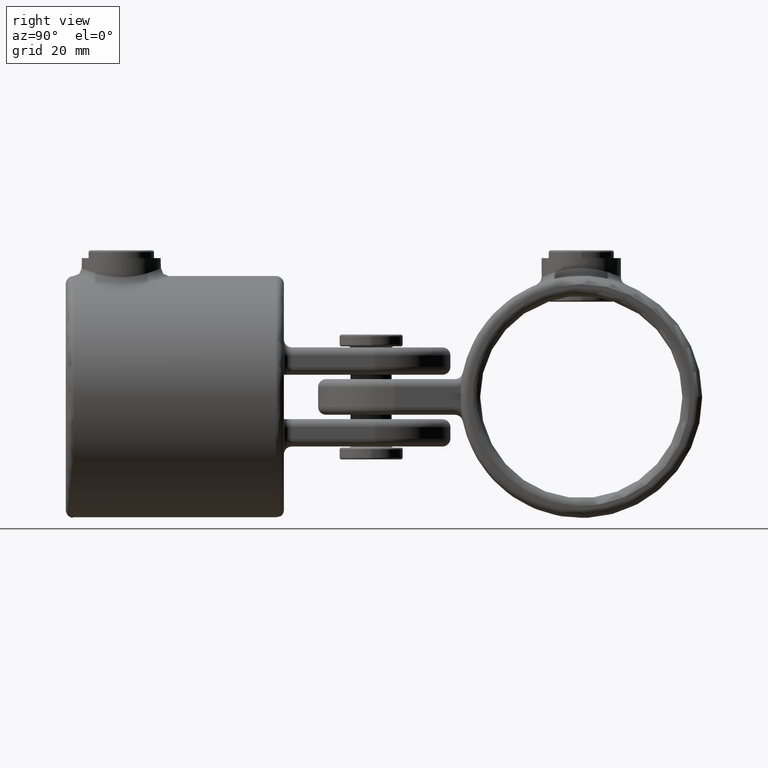
[diagram: clean part render]
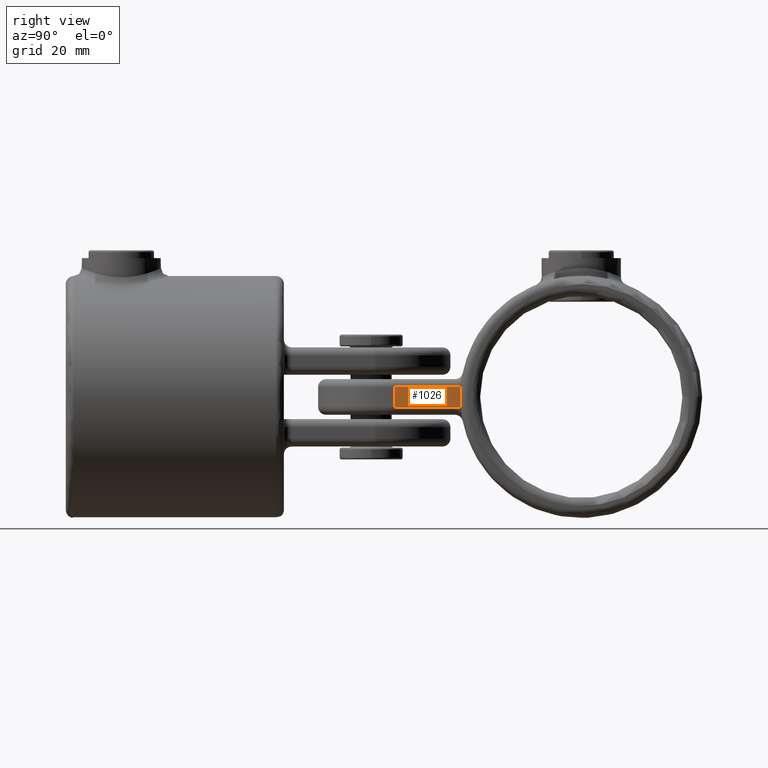
[diagram: same view with one face highlighted and labeled with its STEP entity id]
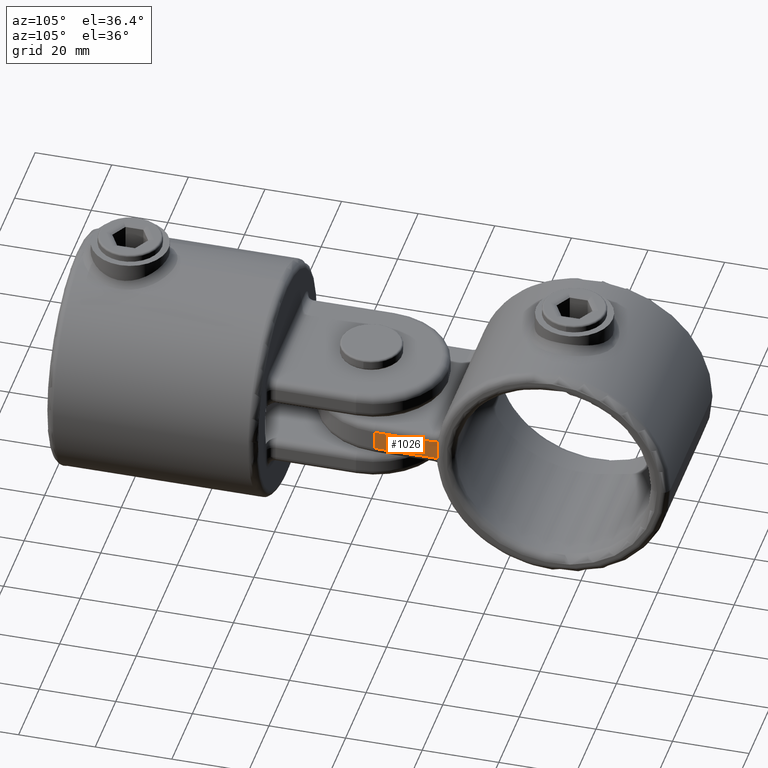
[diagram: same view with one face highlighted and labeled with its STEP entity id]
A machine part, right view. The second image highlights one B-rep face of the part: STEP entity #1026.
A second angle (auxiliary view) of the same face is appended — the face is thin or edge-on in the first view.
In plain terms, the highlighted planar face has unit normal (-1, -0, 0).
Its self-contained STEP definition (entity closure, byte-faithful):
#25 = AXIS2_PLACEMENT_3D ( 'NONE', #2506, #1278, #2079 ) ;
#66 = CARTESIAN_POINT ( 'NONE',  ( 4.500000000000000000, 19.50000000000001066, -28.49999999999999645 ) ) ;
#152 = CARTESIAN_POINT ( 'NONE',  ( 2.499999999999999556, 19.50000000000001066, -46.99999999999999289 ) ) ;
#436 = VERTEX_POINT ( 'NONE', #3570 ) ;
#774 = EDGE_CURVE ( 'NONE', #2438, #2694, #819, .T. ) ;
#800 = AXIS2_PLACEMENT_3D ( 'NONE', #4526, #881, #4507 ) ;
#819 = LINE ( 'NONE', #1044, #3897 ) ;
#831 = ORIENTED_EDGE ( 'NONE', *, *, #774, .T. ) ;
#881 = DIRECTION ( 'NONE',  ( 0.000000000000000000, -1.000000000000000000, 0.000000000000000000 ) ) ;
#898 = DIRECTION ( 'NONE',  ( 0.000000000000000000, 0.000000000000000000, -1.000000000000000000 ) ) ;
#906 = CIRCLE ( 'NONE', #25, 4.000000000000003553 ) ;
#1026 = ADVANCED_FACE ( 'NONE', ( #1509 ), #3241, .F. ) ;
#1044 = CARTESIAN_POINT ( 'NONE',  ( -2.499999999999999556, 19.50000000000001066, -28.49999999999999645 ) ) ;
#1066 = VECTOR ( 'NONE', #3788, 1000.000000000000000 ) ;
#1101 = EDGE_CURVE ( 'NONE', #2200, #1817, #4888, .T. ) ;
#1215 = CARTESIAN_POINT ( 'NONE',  ( -2.780036046625686375, 19.50000000000001066, -30.37303737823172867 ) ) ;
#1278 = DIRECTION ( 'NONE',  ( 0.000000000000000000, -1.000000000000000000, 0.000000000000000000 ) ) ;
#1509 = FACE_OUTER_BOUND ( 'NONE', #2316, .T. ) ;
#1689 = ORIENTED_EDGE ( 'NONE', *, *, #1101, .T. ) ;
#1817 = VERTEX_POINT ( 'NONE', #3385 ) ;
#1879 = ORIENTED_EDGE ( 'NONE', *, *, #2197, .T. ) ;
#2021 = VECTOR ( 'NONE', #4216, 1000.000000000000000 ) ;
#2079 = DIRECTION ( 'NONE',  ( 0.000000000000000000, 0.000000000000000000, -1.000000000000000000 ) ) ;
#2094 = EDGE_CURVE ( 'NONE', #4039, #436, #5068, .T. ) ;
#2197 = EDGE_CURVE ( 'NONE', #436, #2200, #2383, .T. ) ;
#2200 = VERTEX_POINT ( 'NONE', #4124 ) ;
#2268 = CARTESIAN_POINT ( 'NONE',  ( -2.499999999999999556, 19.50000000000001066, -31.84336665618131690 ) ) ;
#2316 = EDGE_LOOP ( 'NONE', ( #831, #5037, #4502, #1879, #1689, #3002 ) ) ;
#2383 = CIRCLE ( 'NONE', #800, 4.000000000000003553 ) ;
#2438 = VERTEX_POINT ( 'NONE', #5027 ) ;
#2506 = CARTESIAN_POINT ( 'NONE',  ( -6.500000000000000000, 19.50000000000001066, -31.84336665618131690 ) ) ;
#2517 = AXIS2_PLACEMENT_3D ( 'NONE', #4862, #4915, #2916 ) ;
#2694 = VERTEX_POINT ( 'NONE', #2268 ) ;
#2916 = DIRECTION ( 'NONE',  ( 0.000000000000000000, 0.000000000000000000, -1.000000000000000000 ) ) ;
#3002 = ORIENTED_EDGE ( 'NONE', *, *, #3556, .T. ) ;
#3093 = LINE ( 'NONE', #3829, #2021 ) ;
#3163 = AXIS2_PLACEMENT_3D ( 'NONE', #66, #3689, #898 ) ;
#3241 = PLANE ( 'NONE',  #3163 ) ;
#3385 = CARTESIAN_POINT ( 'NONE',  ( 2.499999999999999556, 19.50000000000001066, -46.99999999999999289 ) ) ;
#3556 = EDGE_CURVE ( 'NONE', #1817, #2438, #3093, .T. ) ;
#3570 = CARTESIAN_POINT ( 'NONE',  ( 2.780036046625686375, 19.50000000000001066, -30.37303737823172867 ) ) ;
#3689 = DIRECTION ( 'NONE',  ( 0.000000000000000000, -1.000000000000000000, 0.000000000000000000 ) ) ;
#3788 = DIRECTION ( 'NONE',  ( -0.000000000000000000, -0.000000000000000000, -1.000000000000000000 ) ) ;
#3829 = CARTESIAN_POINT ( 'NONE',  ( 4.500000000000000000, 19.50000000000001066, -46.99999999999999289 ) ) ;
#3897 = VECTOR ( 'NONE', #4178, 1000.000000000000000 ) ;
#4039 = VERTEX_POINT ( 'NONE', #1215 ) ;
#4124 = CARTESIAN_POINT ( 'NONE',  ( 2.499999999999999556, 19.50000000000001066, -31.84336665618131690 ) ) ;
#4178 = DIRECTION ( 'NONE',  ( 0.000000000000000000, 0.000000000000000000, 1.000000000000000000 ) ) ;
#4216 = DIRECTION ( 'NONE',  ( -1.000000000000000000, 0.000000000000000000, 0.000000000000000000 ) ) ;
#4298 = EDGE_CURVE ( 'NONE', #2694, #4039, #906, .T. ) ;
#4502 = ORIENTED_EDGE ( 'NONE', *, *, #2094, .T. ) ;
#4507 = DIRECTION ( 'NONE',  ( 0.000000000000000000, 0.000000000000000000, -1.000000000000000000 ) ) ;
#4526 = CARTESIAN_POINT ( 'NONE',  ( 6.500000000000000000, 19.50000000000001066, -31.84336665618131690 ) ) ;
#4862 = CARTESIAN_POINT ( 'NONE',  ( 0.000000000000000000, 19.50000000000001066, 0.000000000000000000 ) ) ;
#4888 = LINE ( 'NONE', #152, #1066 ) ;
#4915 = DIRECTION ( 'NONE',  ( 0.000000000000000000, -1.000000000000000000, 0.000000000000000000 ) ) ;
#5027 = CARTESIAN_POINT ( 'NONE',  ( -2.499999999999999556, 19.50000000000001066, -46.99999999999999289 ) ) ;
#5037 = ORIENTED_EDGE ( 'NONE', *, *, #4298, .T. ) ;
#5068 = CIRCLE ( 'NONE', #2517, 30.50000000000000000 ) ;